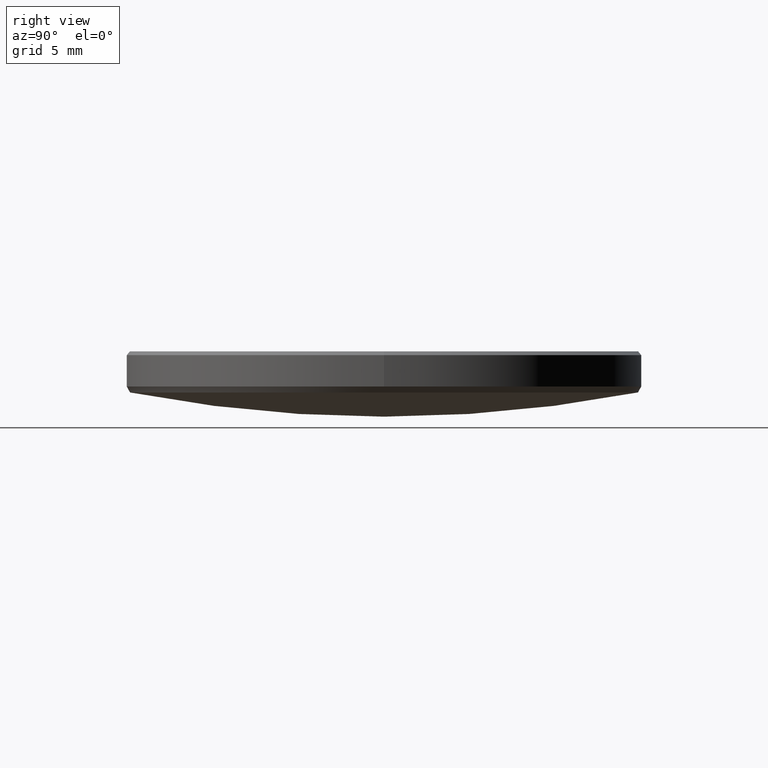
[diagram: clean part render]
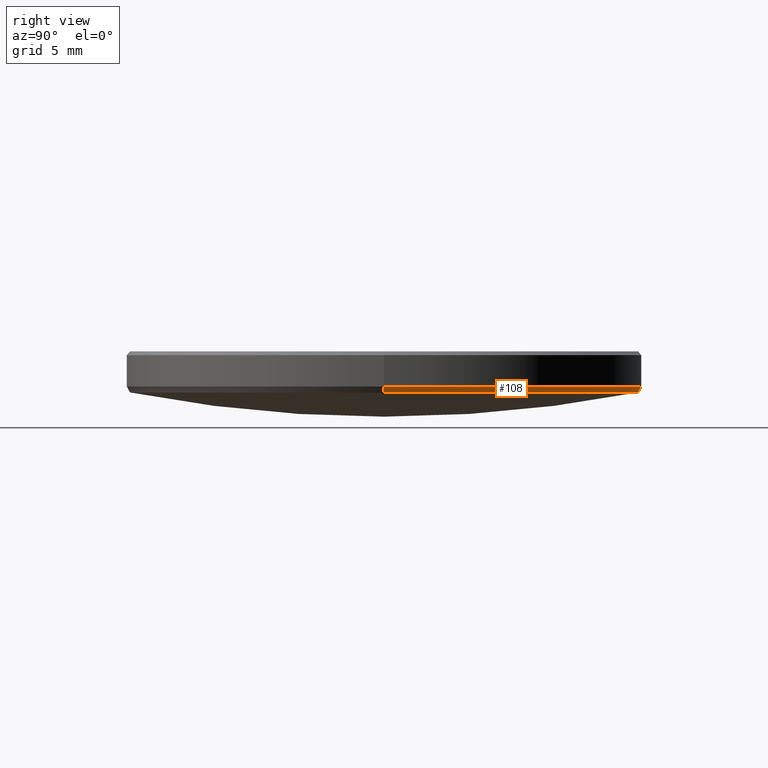
[diagram: same view with one face highlighted and labeled with its STEP entity id]
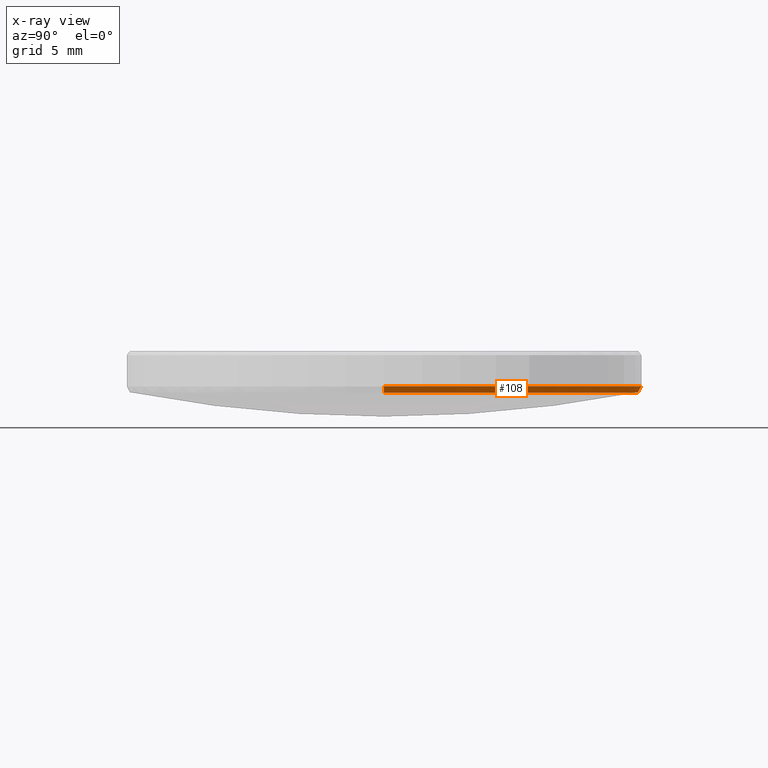
[diagram: x-ray of the same camera — body ghosted, the highlighted face saturated]
A machine part, right view. The second image highlights one B-rep face of the part: STEP entity #108.
The next image is the same camera in x-ray: the body ghosted, the highlighted face saturated — about 0% of this face is hidden behind the body in this view.
In plain terms, the highlighted conical surface has half-angle 33.931 deg.
Its self-contained STEP definition (entity closure, byte-faithful):
#9 = DIRECTION ( 'NONE',  ( -0.000000000000000000, -0.000000000000000000, 1.000000000000000000 ) ) ;
#12 = FACE_OUTER_BOUND ( 'NONE', #52, .T. ) ;
#18 = ORIENTED_EDGE ( 'NONE', *, *, #36, .F. ) ;
#36 = EDGE_CURVE ( 'NONE', #175, #274, #300, .T. ) ;
#46 = CARTESIAN_POINT ( 'NONE',  ( 0.000000000000000000, 0.000000000000000000, 3.961956115965656444 ) ) ;
#50 = CIRCLE ( 'NONE', #153, 12.50395849586555030 ) ;
#52 = EDGE_LOOP ( 'NONE', ( #297, #247, #310, #18, #210 ) ) ;
#58 = DIRECTION ( 'NONE',  ( 0.000000000000000000, 0.000000000000000000, -1.000000000000000000 ) ) ;
#66 = AXIS2_PLACEMENT_3D ( 'NONE', #93, #72, #117 ) ;
#69 = EDGE_CURVE ( 'NONE', #234, #158, #50, .T. ) ;
#72 = DIRECTION ( 'NONE',  ( -0.000000000000000000, -0.000000000000000000, 1.000000000000000000 ) ) ;
#80 = EDGE_CURVE ( 'NONE', #274, #200, #224, .T. ) ;
#92 = AXIS2_PLACEMENT_3D ( 'NONE', #266, #58, #165 ) ;
#93 = CARTESIAN_POINT ( 'NONE',  ( 0.000000000000000000, 0.000000000000000000, 4.253353967830220128 ) ) ;
#98 = CARTESIAN_POINT ( 'NONE',  ( -12.69999999999999929, 1.555301434917138433E-15, 4.253353967830220128 ) ) ;
#108 = ADVANCED_FACE ( 'NONE', ( #12 ), #171, .T. ) ;
#111 = VECTOR ( 'NONE', #271, 1000.000000000000000 ) ;
#117 = DIRECTION ( 'NONE',  ( 1.000000000000000000, 0.000000000000000000, 0.000000000000000000 ) ) ;
#138 = CARTESIAN_POINT ( 'NONE',  ( -12.50395849586555030, 1.543297354890224221E-15, 3.961956115965656444 ) ) ;
#153 = AXIS2_PLACEMENT_3D ( 'NONE', #46, #251, #230 ) ;
#158 = VERTEX_POINT ( 'NONE', #292 ) ;
#165 = DIRECTION ( 'NONE',  ( 1.000000000000000000, 0.000000000000000000, 0.000000000000000000 ) ) ;
#170 = EDGE_CURVE ( 'NONE', #234, #200, #229, .T. ) ;
#171 = CONICAL_SURFACE ( 'NONE', #66, 12.69999999999999929, 0.5922108289621466071 ) ;
#175 = VERTEX_POINT ( 'NONE', #199 ) ;
#181 = CARTESIAN_POINT ( 'NONE',  ( 12.69999999999999929, 1.555301434917138433E-15, 4.253353967830220128 ) ) ;
#190 = CIRCLE ( 'NONE', #92, 12.50395849586555030 ) ;
#191 = CARTESIAN_POINT ( 'NONE',  ( -12.69999999999999929, 0.000000000000000000, 4.253353967830220128 ) ) ;
#197 = DIRECTION ( 'NONE',  ( 0.5581967294551084535, 0.000000000000000000, 0.8297086303188730971 ) ) ;
#199 = CARTESIAN_POINT ( 'NONE',  ( 12.50395849586555030, 0.000000000000000000, 3.961956115965656444 ) ) ;
#200 = VERTEX_POINT ( 'NONE', #191 ) ;
#210 = ORIENTED_EDGE ( 'NONE', *, *, #237, .F. ) ;
#213 = VECTOR ( 'NONE', #197, 1000.000000000000000 ) ;
#224 = CIRCLE ( 'NONE', #264, 12.69999999999999929 ) ;
#229 = LINE ( 'NONE', #98, #111 ) ;
#230 = DIRECTION ( 'NONE',  ( 1.000000000000000000, 0.000000000000000000, 0.000000000000000000 ) ) ;
#234 = VERTEX_POINT ( 'NONE', #138 ) ;
#237 = EDGE_CURVE ( 'NONE', #158, #175, #190, .T. ) ;
#243 = CARTESIAN_POINT ( 'NONE',  ( 12.69999999999999929, 0.000000000000000000, 4.253353967830220128 ) ) ;
#247 = ORIENTED_EDGE ( 'NONE', *, *, #170, .T. ) ;
#251 = DIRECTION ( 'NONE',  ( 0.000000000000000000, 0.000000000000000000, -1.000000000000000000 ) ) ;
#264 = AXIS2_PLACEMENT_3D ( 'NONE', #323, #9, #321 ) ;
#266 = CARTESIAN_POINT ( 'NONE',  ( 0.000000000000000000, 0.000000000000000000, 3.961956115965656444 ) ) ;
#271 = DIRECTION ( 'NONE',  ( -0.5581967294551084535, 6.835938380217195988E-17, 0.8297086303188730971 ) ) ;
#274 = VERTEX_POINT ( 'NONE', #181 ) ;
#292 = CARTESIAN_POINT ( 'NONE',  ( 0.000000000000000000, 12.50395849586554675, 3.961956115965656444 ) ) ;
#297 = ORIENTED_EDGE ( 'NONE', *, *, #69, .F. ) ;
#300 = LINE ( 'NONE', #243, #213 ) ;
#310 = ORIENTED_EDGE ( 'NONE', *, *, #80, .F. ) ;
#321 = DIRECTION ( 'NONE',  ( -1.000000000000000000, 0.000000000000000000, 0.000000000000000000 ) ) ;
#323 = CARTESIAN_POINT ( 'NONE',  ( 0.000000000000000000, 0.000000000000000000, 4.253353967830220128 ) ) ;